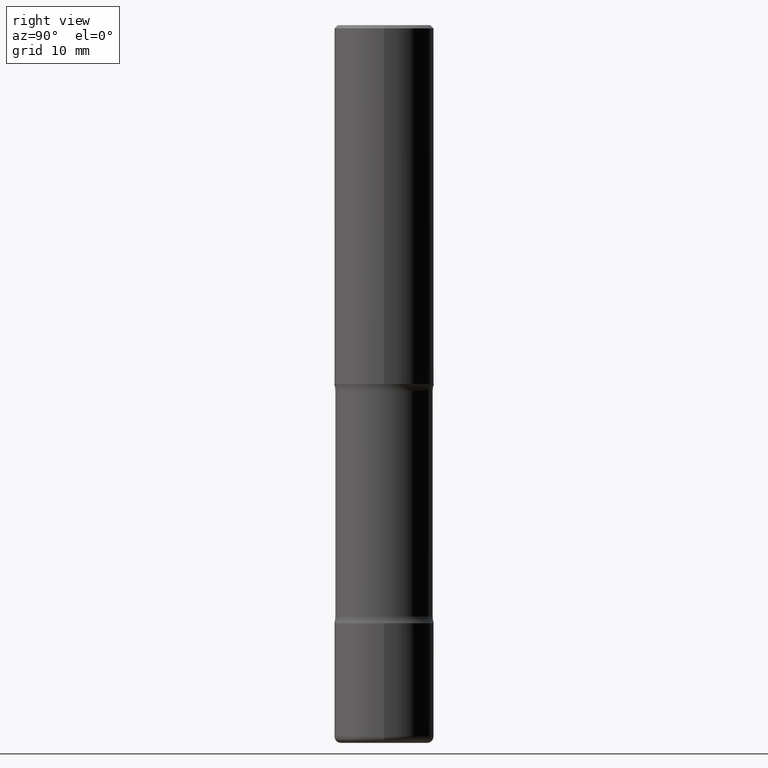
[diagram: clean part render]
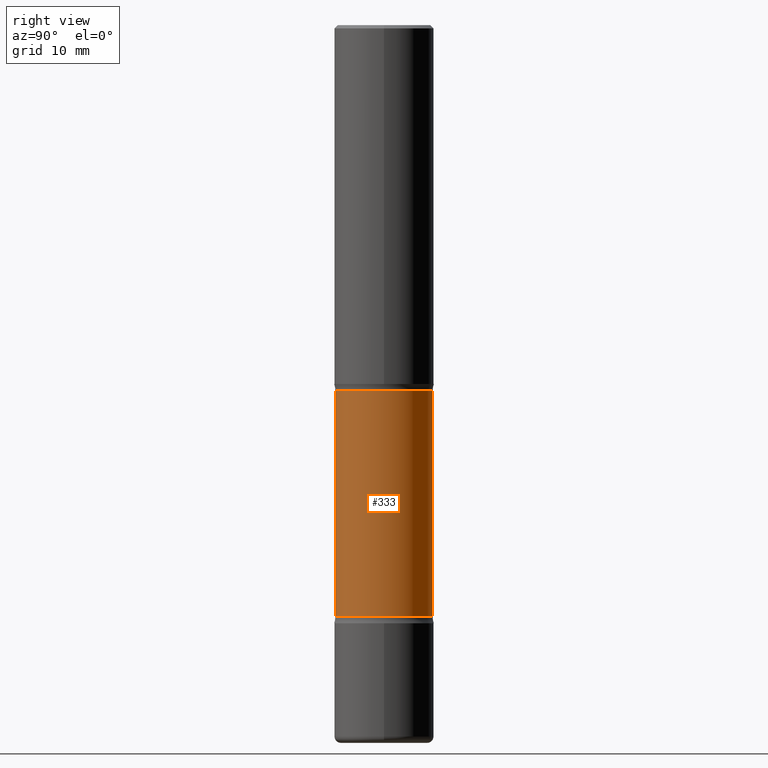
[diagram: same view with one face highlighted and labeled with its STEP entity id]
A machine part, right view. The second image highlights one B-rep face of the part: STEP entity #333.
In plain terms, the highlighted cylindrical surface (partial cylindrical patch) has radius 7.747 mm, axis along (0, -0, -1).
Its self-contained STEP definition (entity closure, byte-faithful):
#10 = DIRECTION ( 'NONE',  ( 6.982962677686265133E-15, 1.000000000000000000, -3.582751467100671728E-15 ) ) ;
#32 = EDGE_CURVE ( 'NONE', #71, #217, #350, .T. ) ;
#50 = VECTOR ( 'NONE', #442, 39.37007874015748143 ) ;
#51 = EDGE_CURVE ( 'NONE', #132, #71, #496, .T. ) ;
#54 = CARTESIAN_POINT ( 'NONE',  ( 1.109999159073746203E-28, -1.557507362511094324E-14, -4.500000000000000000 ) ) ;
#71 = VERTEX_POINT ( 'NONE', #292 ) ;
#81 = CARTESIAN_POINT ( 'NONE',  ( 2.129803616694422892E-15, 0.3049999999999845057, -4.500000000000000888 ) ) ;
#103 = VECTOR ( 'NONE', #474, 39.37007874015748143 ) ;
#112 = CARTESIAN_POINT ( 'NONE',  ( 2.129803616694366488E-15, 0.3049999999999918887, -2.292646805273081512 ) ) ;
#117 = EDGE_CURVE ( 'NONE', #369, #217, #205, .T. ) ;
#132 = VERTEX_POINT ( 'NONE', #112 ) ;
#136 = CARTESIAN_POINT ( 'NONE',  ( 5.421255968084691765E-29, -8.270151363907644823E-15, -2.292646805273080179 ) ) ;
#165 = DIRECTION ( 'NONE',  ( 2.572644756724267881E-29, -3.309358139265528035E-15, -1.000000000000000000 ) ) ;
#199 = EDGE_CURVE ( 'NONE', #132, #369, #274, .T. ) ;
#203 = EDGE_LOOP ( 'NONE', ( #372, #537, #544, #249 ) ) ;
#205 = CIRCLE ( 'NONE', #535, 0.3049999999999999933 ) ;
#217 = VERTEX_POINT ( 'NONE', #521 ) ;
#234 = DIRECTION ( 'NONE',  ( 2.572644756724267881E-29, -3.309358139265528035E-15, -1.000000000000000000 ) ) ;
#249 = ORIENTED_EDGE ( 'NONE', *, *, #199, .F. ) ;
#259 = DIRECTION ( 'NONE',  ( 2.572644756724267881E-29, -3.309358139265528035E-15, -1.000000000000000000 ) ) ;
#264 = AXIS2_PLACEMENT_3D ( 'NONE', #136, #259, #511 ) ;
#274 = LINE ( 'NONE', #81, #103 ) ;
#292 = CARTESIAN_POINT ( 'NONE',  ( -2.118178756811908447E-15, -0.3050000000000084310, -2.292646805273079291 ) ) ;
#325 = DIRECTION ( 'NONE',  ( 6.982962677686266711E-15, 1.000000000000000000, -3.582751467100673306E-15 ) ) ;
#333 = ADVANCED_FACE ( 'NONE', ( #358 ), #455, .T. ) ;
#347 = CARTESIAN_POINT ( 'NONE',  ( 2.129803616694401592E-15, 0.3049999999999870592, -3.707353194726921153 ) ) ;
#350 = LINE ( 'NONE', #404, #50 ) ;
#358 = FACE_OUTER_BOUND ( 'NONE', #203, .T. ) ;
#369 = VERTEX_POINT ( 'NONE', #347 ) ;
#372 = ORIENTED_EDGE ( 'NONE', *, *, #51, .T. ) ;
#404 = CARTESIAN_POINT ( 'NONE',  ( -2.092451889320206576E-15, -0.3050000000000156475, -4.499999999999999112 ) ) ;
#442 = DIRECTION ( 'NONE',  ( 2.572644756724267881E-29, -3.309358139265528035E-15, -1.000000000000000000 ) ) ;
#455 = CYLINDRICAL_SURFACE ( 'NONE', #518, 0.3050000000000001044 ) ;
#474 = DIRECTION ( 'NONE',  ( 2.572644756724267881E-29, -3.309358139265528035E-15, -1.000000000000000000 ) ) ;
#496 = CIRCLE ( 'NONE', #264, 0.3050000000000001599 ) ;
#511 = DIRECTION ( 'NONE',  ( 6.982962677686266711E-15, 1.000000000000000000, -3.582751467100670940E-15 ) ) ;
#518 = AXIS2_PLACEMENT_3D ( 'NONE', #54, #234, #10 ) ;
#521 = CARTESIAN_POINT ( 'NONE',  ( -2.118178756811869004E-15, -0.3050000000000129274, -3.707353194726918932 ) ) ;
#535 = AXIS2_PLACEMENT_3D ( 'NONE', #547, #165, #325 ) ;
#537 = ORIENTED_EDGE ( 'NONE', *, *, #32, .T. ) ;
#544 = ORIENTED_EDGE ( 'NONE', *, *, #117, .F. ) ;
#547 = CARTESIAN_POINT ( 'NONE',  ( 9.060792943217432011E-29, -1.295192146851765677E-14, -3.707353194726920265 ) ) ;